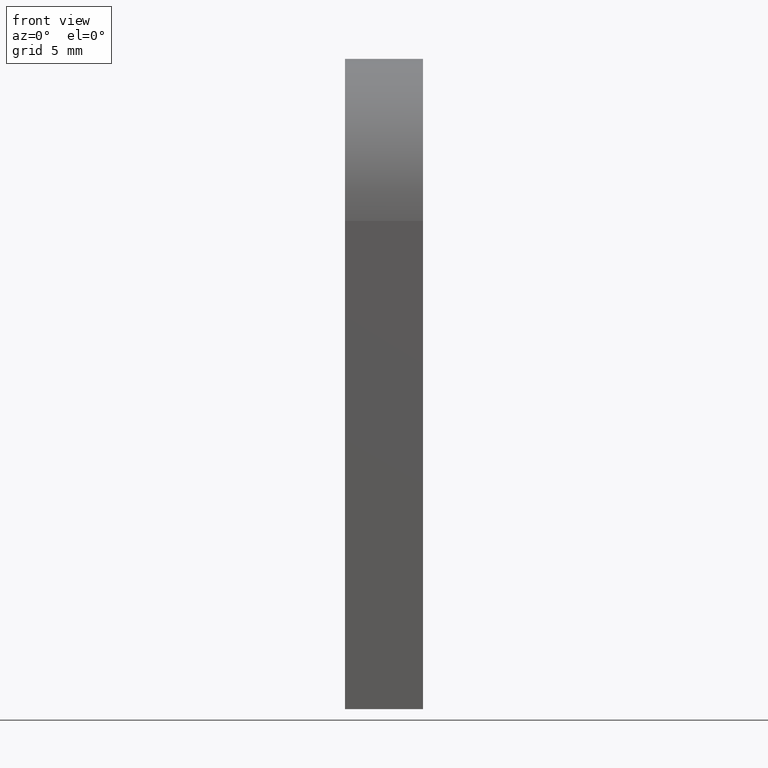
[diagram: clean part render]
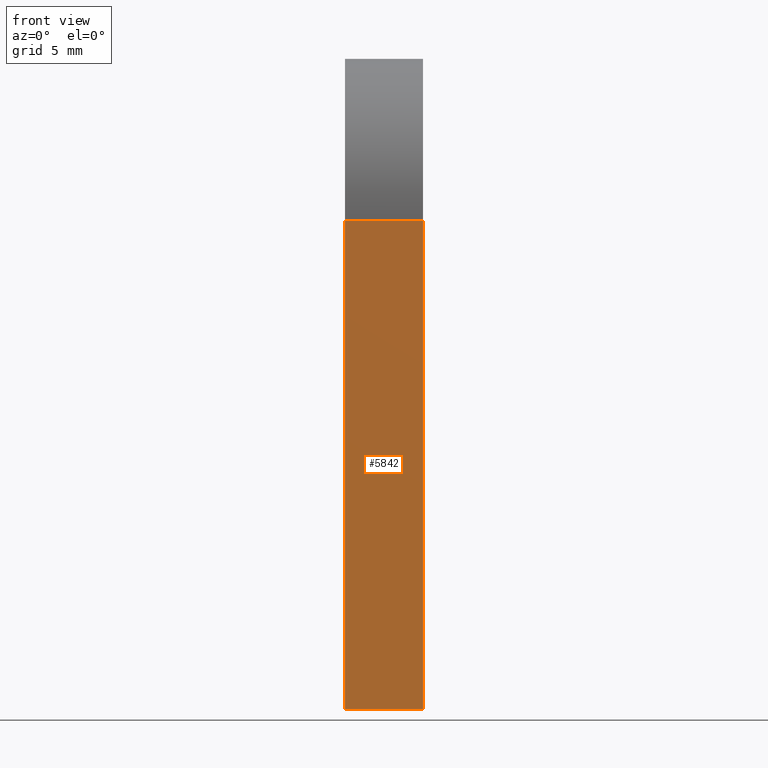
[diagram: same view with one face highlighted and labeled with its STEP entity id]
A machine part, front view. The second image highlights one B-rep face of the part: STEP entity #5842.
In plain terms, the highlighted planar face has unit normal (0, -1, -0).
Its self-contained STEP definition (entity closure, byte-faithful):
#304 = VERTEX_POINT ( 'NONE', #9045 ) ;
#668 = CARTESIAN_POINT ( 'NONE',  ( 3.000000000000000000, -12.50000000000000000, -3.367778697655221307E-15 ) ) ;
#835 = EDGE_CURVE ( 'NONE', #6148, #304, #8347, .T. ) ;
#1041 = DIRECTION ( 'NONE',  ( 0.000000000000000000, 4.625929269271485174E-17, -1.000000000000000000 ) ) ;
#1188 = LINE ( 'NONE', #9608, #8340 ) ;
#1538 = CARTESIAN_POINT ( 'NONE',  ( 3.000000000000000000, -12.50000000000000178, 37.50000000000000000 ) ) ;
#1542 = VERTEX_POINT ( 'NONE', #5653 ) ;
#1889 = EDGE_CURVE ( 'NONE', #9092, #6148, #10325, .T. ) ;
#1966 = EDGE_CURVE ( 'NONE', #1542, #304, #1188, .T. ) ;
#2060 = DIRECTION ( 'NONE',  ( -1.000000000000000000, -0.000000000000000000, -0.000000000000000000 ) ) ;
#2192 = ORIENTED_EDGE ( 'NONE', *, *, #835, .T. ) ;
#2842 = ORIENTED_EDGE ( 'NONE', *, *, #1966, .F. ) ;
#3827 = CARTESIAN_POINT ( 'NONE',  ( 3.000000000000000000, -12.50000000000000000, -3.367778697655221307E-15 ) ) ;
#4320 = DIRECTION ( 'NONE',  ( 0.000000000000000000, -4.625929269271485791E-17, 1.000000000000000000 ) ) ;
#4422 = VECTOR ( 'NONE', #4320, 1000.000000000000000 ) ;
#4999 = ORIENTED_EDGE ( 'NONE', *, *, #1889, .T. ) ;
#5326 = EDGE_LOOP ( 'NONE', ( #2842, #10117, #4999, #2192 ) ) ;
#5653 = CARTESIAN_POINT ( 'NONE',  ( -3.000000000000000000, -12.50000000000000000, -3.367778697655221307E-15 ) ) ;
#5842 = ADVANCED_FACE ( 'NONE', ( #9568 ), #10054, .T. ) ;
#5848 = VECTOR ( 'NONE', #8501, 1000.000000000000000 ) ;
#6148 = VERTEX_POINT ( 'NONE', #10172 ) ;
#6495 = EDGE_CURVE ( 'NONE', #9092, #1542, #10999, .T. ) ;
#7396 = DIRECTION ( 'NONE',  ( 0.000000000000000000, -1.000000000000000000, -4.625929269271485174E-17 ) ) ;
#8340 = VECTOR ( 'NONE', #10538, 1000.000000000000000 ) ;
#8347 = LINE ( 'NONE', #1538, #5848 ) ;
#8501 = DIRECTION ( 'NONE',  ( -1.000000000000000000, -0.000000000000000000, -0.000000000000000000 ) ) ;
#9045 = CARTESIAN_POINT ( 'NONE',  ( -3.000000000000000000, -12.50000000000000178, 37.50000000000000000 ) ) ;
#9092 = VERTEX_POINT ( 'NONE', #9934 ) ;
#9568 = FACE_OUTER_BOUND ( 'NONE', #5326, .T. ) ;
#9608 = CARTESIAN_POINT ( 'NONE',  ( -3.000000000000000000, -12.50000000000000000, -3.367778697655221307E-15 ) ) ;
#9716 = AXIS2_PLACEMENT_3D ( 'NONE', #3827, #7396, #1041 ) ;
#9934 = CARTESIAN_POINT ( 'NONE',  ( 3.000000000000000000, -12.50000000000000000, -3.367778697655221307E-15 ) ) ;
#10054 = PLANE ( 'NONE',  #9716 ) ;
#10117 = ORIENTED_EDGE ( 'NONE', *, *, #6495, .F. ) ;
#10172 = CARTESIAN_POINT ( 'NONE',  ( 3.000000000000000000, -12.50000000000000178, 37.50000000000000000 ) ) ;
#10325 = LINE ( 'NONE', #668, #4422 ) ;
#10421 = VECTOR ( 'NONE', #2060, 1000.000000000000000 ) ;
#10538 = DIRECTION ( 'NONE',  ( 0.000000000000000000, -4.625929269271485791E-17, 1.000000000000000000 ) ) ;
#10999 = LINE ( 'NONE', #11037, #10421 ) ;
#11037 = CARTESIAN_POINT ( 'NONE',  ( 3.000000000000000000, -12.50000000000000000, -3.367778697655221307E-15 ) ) ;